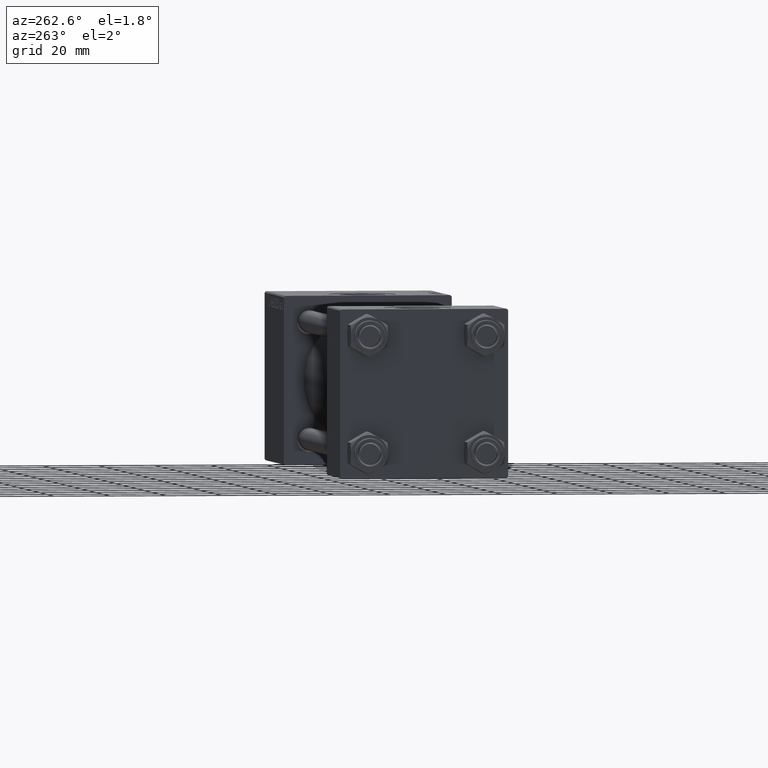
[diagram: clean part render]
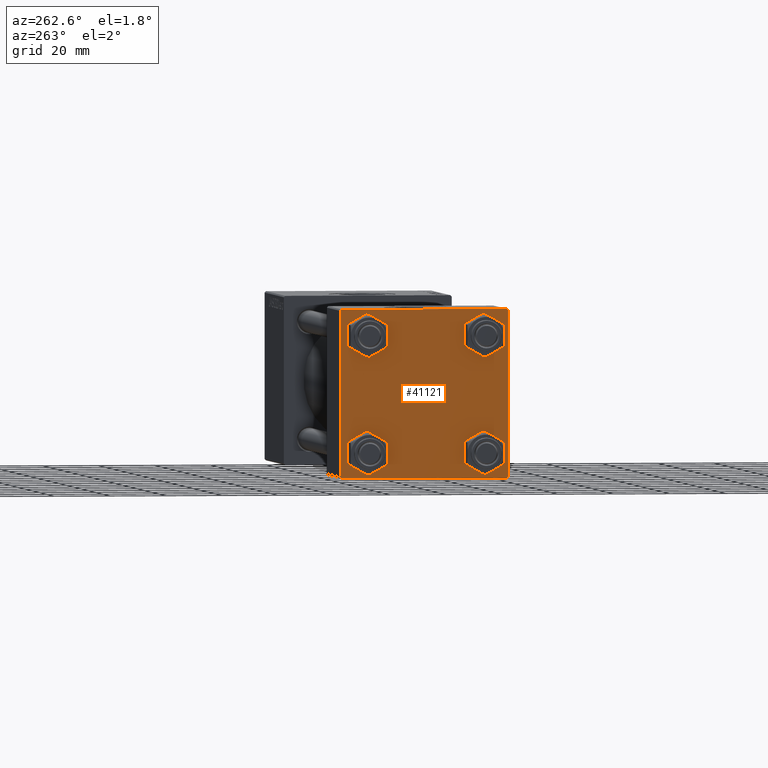
[diagram: same view with one face highlighted and labeled with its STEP entity id]
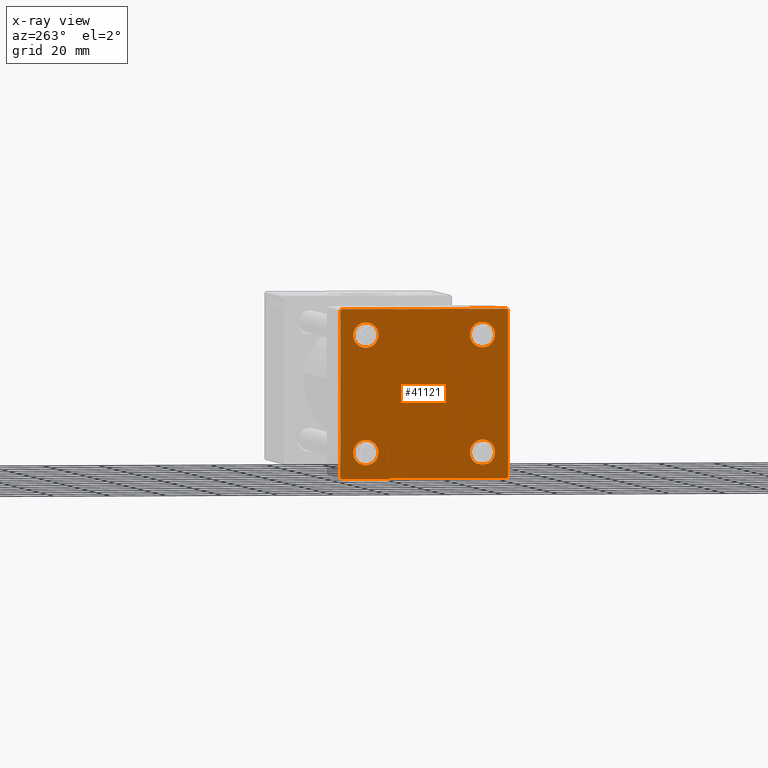
[diagram: x-ray of the same camera — body ghosted, the highlighted face saturated]
A machine part, auxiliary view. The second image highlights one B-rep face of the part: STEP entity #41121.
The next image is the same camera in x-ray: the body ghosted, the highlighted face saturated — about 0% of this face is hidden behind the body in this view.
In plain terms, the highlighted planar face has unit normal (-1, 0, 0).
Its self-contained STEP definition (entity closure, byte-faithful):
#269 = DIRECTION ( 'NONE',  ( -0.000000000000000000, -0.7071067811865574537, -0.7071067811865376918 ) ) ;
#702 = ORIENTED_EDGE ( 'NONE', *, *, #46769, .T. ) ;
#813 = CIRCLE ( 'NONE', #18283, 4.500000000000017764 ) ;
#1068 = EDGE_CURVE ( 'NONE', #48639, #22773, #35595, .T. ) ;
#1350 = EDGE_CURVE ( 'NONE', #25620, #45730, #23974, .T. ) ;
#1657 = FACE_BOUND ( 'NONE', #20911, .T. ) ;
#1671 = DIRECTION ( 'NONE',  ( 0.000000000000000000, 0.000000000000000000, 1.000000000000000000 ) ) ;
#1912 = DIRECTION ( 'NONE',  ( -0.000000000000000000, 0.000000000000000000, 1.000000000000000000 ) ) ;
#2900 = VERTEX_POINT ( 'NONE', #23548 ) ;
#3414 = LINE ( 'NONE', #14895, #24510 ) ;
#3769 = DIRECTION ( 'NONE',  ( 1.000000000000000000, -0.000000000000000000, 0.000000000000000000 ) ) ;
#3866 = EDGE_LOOP ( 'NONE', ( #44880, #20870, #28038, #38417, #13132, #15945, #17284, #9060 ) ) ;
#4473 = VECTOR ( 'NONE', #29014, 1000.000000000000000 ) ;
#4520 = CARTESIAN_POINT ( 'NONE',  ( 0.000000000000000000, -20.84999999999999076, -20.85000000000000497 ) ) ;
#5322 = CIRCLE ( 'NONE', #41920, 4.500000000000017764 ) ;
#5675 = CARTESIAN_POINT ( 'NONE',  ( 0.000000000000000000, 20.84999999999999787, -20.85000000000000142 ) ) ;
#5705 = ORIENTED_EDGE ( 'NONE', *, *, #33542, .T. ) ;
#5833 = FACE_BOUND ( 'NONE', #15432, .T. ) ;
#6588 = CARTESIAN_POINT ( 'NONE',  ( 0.000000000000000000, 0.000000000000000000, 0.000000000000000000 ) ) ;
#6897 = CARTESIAN_POINT ( 'NONE',  ( 0.000000000000000000, -20.84999999999999076, 16.34999999999998721 ) ) ;
#7049 = AXIS2_PLACEMENT_3D ( 'NONE', #35634, #15811, #31707 ) ;
#7334 = LINE ( 'NONE', #23487, #28668 ) ;
#7676 = DIRECTION ( 'NONE',  ( 0.000000000000000000, 0.000000000000000000, 1.000000000000000000 ) ) ;
#7995 = EDGE_CURVE ( 'NONE', #21670, #21316, #40806, .T. ) ;
#8403 = CIRCLE ( 'NONE', #23347, 4.500000000000017764 ) ;
#8688 = CARTESIAN_POINT ( 'NONE',  ( 0.000000000000000000, 20.84999999999999787, -25.35000000000001918 ) ) ;
#9060 = ORIENTED_EDGE ( 'NONE', *, *, #29308, .T. ) ;
#9423 = DIRECTION ( 'NONE',  ( 0.000000000000000000, 0.000000000000000000, 1.000000000000000000 ) ) ;
#9638 = ORIENTED_EDGE ( 'NONE', *, *, #35827, .T. ) ;
#10874 = CARTESIAN_POINT ( 'NONE',  ( 0.000000000000000000, 20.84999999999999787, -16.34999999999998366 ) ) ;
#11439 = CARTESIAN_POINT ( 'NONE',  ( 0.000000000000000000, 20.84999999999999787, 16.34999999999998366 ) ) ;
#11571 = LINE ( 'NONE', #19647, #4473 ) ;
#12497 = DIRECTION ( 'NONE',  ( 0.000000000000000000, 0.000000000000000000, 1.000000000000000000 ) ) ;
#13132 = ORIENTED_EDGE ( 'NONE', *, *, #38023, .F. ) ;
#13218 = CARTESIAN_POINT ( 'NONE',  ( 0.000000000000000000, -29.50000000000000000, -30.00000000000000711 ) ) ;
#13899 = FACE_BOUND ( 'NONE', #19580, .T. ) ;
#13980 = EDGE_CURVE ( 'NONE', #21316, #21670, #18416, .T. ) ;
#14086 = VECTOR ( 'NONE', #25070, 1000.000000000000114 ) ;
#14823 = CARTESIAN_POINT ( 'NONE',  ( 0.000000000000000000, -20.84999999999999076, 25.35000000000002274 ) ) ;
#14895 = CARTESIAN_POINT ( 'NONE',  ( -0.000000000000000000, -29.74999999999999645, 29.74999999999999645 ) ) ;
#14926 = CARTESIAN_POINT ( 'NONE',  ( 0.000000000000000000, -30.00000000000000000, 29.99999999999999289 ) ) ;
#15432 = EDGE_LOOP ( 'NONE', ( #9638, #702 ) ) ;
#15531 = VECTOR ( 'NONE', #49882, 1000.000000000000000 ) ;
#15811 = DIRECTION ( 'NONE',  ( 1.000000000000000000, -0.000000000000000000, 0.000000000000000000 ) ) ;
#15945 = ORIENTED_EDGE ( 'NONE', *, *, #21450, .T. ) ;
#15958 = VECTOR ( 'NONE', #18574, 1000.000000000000000 ) ;
#16407 = CARTESIAN_POINT ( 'NONE',  ( 0.000000000000000000, 20.84999999999999787, 20.85000000000000142 ) ) ;
#17003 = LINE ( 'NONE', #20399, #14086 ) ;
#17284 = ORIENTED_EDGE ( 'NONE', *, *, #25757, .F. ) ;
#18050 = LINE ( 'NONE', #33457, #15531 ) ;
#18128 = CARTESIAN_POINT ( 'NONE',  ( 0.000000000000000000, 29.49999999999997868, -30.00000000000000000 ) ) ;
#18283 = AXIS2_PLACEMENT_3D ( 'NONE', #38969, #3769, #7676 ) ;
#18408 = EDGE_CURVE ( 'NONE', #22773, #48639, #46913, .T. ) ;
#18416 = CIRCLE ( 'NONE', #20918, 4.500000000000017764 ) ;
#18574 = DIRECTION ( 'NONE',  ( 0.000000000000000000, 0.000000000000000000, -1.000000000000000000 ) ) ;
#19054 = EDGE_CURVE ( 'NONE', #50058, #25620, #11571, .T. ) ;
#19248 = ORIENTED_EDGE ( 'NONE', *, *, #13980, .T. ) ;
#19580 = EDGE_LOOP ( 'NONE', ( #41747, #5705 ) ) ;
#19647 = CARTESIAN_POINT ( 'NONE',  ( 0.000000000000000000, 29.99999999999999289, 30.00000000000000000 ) ) ;
#19749 = VERTEX_POINT ( 'NONE', #6897 ) ;
#20399 = CARTESIAN_POINT ( 'NONE',  ( 0.000000000000000000, 29.74999999999999645, 29.74999999999999645 ) ) ;
#20870 = ORIENTED_EDGE ( 'NONE', *, *, #1350, .T. ) ;
#20911 = EDGE_LOOP ( 'NONE', ( #29758, #40912 ) ) ;
#20918 = AXIS2_PLACEMENT_3D ( 'NONE', #24877, #36623, #1671 ) ;
#21316 = VERTEX_POINT ( 'NONE', #34714 ) ;
#21450 = EDGE_CURVE ( 'NONE', #41870, #27051, #3414, .T. ) ;
#21465 = PLANE ( 'NONE',  #32743 ) ;
#21670 = VERTEX_POINT ( 'NONE', #11439 ) ;
#21722 = DIRECTION ( 'NONE',  ( -1.000000000000000000, 0.000000000000000000, -0.000000000000000000 ) ) ;
#21903 = AXIS2_PLACEMENT_3D ( 'NONE', #5675, #25224, #48731 ) ;
#22773 = VERTEX_POINT ( 'NONE', #10874 ) ;
#23228 = DIRECTION ( 'NONE',  ( 0.000000000000000000, -0.7071067811865474617, 0.7071067811865474617 ) ) ;
#23347 = AXIS2_PLACEMENT_3D ( 'NONE', #25571, #42443, #9423 ) ;
#23420 = EDGE_CURVE ( 'NONE', #45730, #26931, #18050, .T. ) ;
#23487 = CARTESIAN_POINT ( 'NONE',  ( 0.000000000000000000, -29.75000000000001066, -29.75000000000001066 ) ) ;
#23548 = CARTESIAN_POINT ( 'NONE',  ( 0.000000000000000000, 29.49999999999999289, 30.00000000000000000 ) ) ;
#23761 = CARTESIAN_POINT ( 'NONE',  ( 0.000000000000000000, 29.99999999999999289, -29.50000000000000000 ) ) ;
#23974 = LINE ( 'NONE', #35997, #32230 ) ;
#24510 = VECTOR ( 'NONE', #51167, 1000.000000000000114 ) ;
#24877 = CARTESIAN_POINT ( 'NONE',  ( 0.000000000000000000, 20.84999999999999787, 20.85000000000000142 ) ) ;
#24970 = VERTEX_POINT ( 'NONE', #48546 ) ;
#25070 = DIRECTION ( 'NONE',  ( 0.000000000000000000, 0.7071067811865474617, -0.7071067811865474617 ) ) ;
#25224 = DIRECTION ( 'NONE',  ( 1.000000000000000000, -0.000000000000000000, 0.000000000000000000 ) ) ;
#25571 = CARTESIAN_POINT ( 'NONE',  ( 0.000000000000000000, -20.84999999999999076, -20.85000000000000497 ) ) ;
#25620 = VERTEX_POINT ( 'NONE', #23761 ) ;
#25757 = EDGE_CURVE ( 'NONE', #2900, #27051, #45904, .T. ) ;
#25758 = CARTESIAN_POINT ( 'NONE',  ( 0.000000000000000000, -30.00000000000000000, 29.49999999999999289 ) ) ;
#25809 = DIRECTION ( 'NONE',  ( 0.000000000000000000, -1.000000000000000000, -1.156482317317871725E-16 ) ) ;
#26170 = CIRCLE ( 'NONE', #7049, 4.500000000000017764 ) ;
#26931 = VERTEX_POINT ( 'NONE', #13218 ) ;
#27051 = VERTEX_POINT ( 'NONE', #45292 ) ;
#27242 = CARTESIAN_POINT ( 'NONE',  ( 0.000000000000000000, 20.84999999999999787, -20.85000000000000142 ) ) ;
#28038 = ORIENTED_EDGE ( 'NONE', *, *, #23420, .T. ) ;
#28668 = VECTOR ( 'NONE', #23228, 1000.000000000000114 ) ;
#28919 = AXIS2_PLACEMENT_3D ( 'NONE', #27242, #43161, #36628 ) ;
#29014 = DIRECTION ( 'NONE',  ( 0.000000000000000000, 0.000000000000000000, -1.000000000000000000 ) ) ;
#29308 = EDGE_CURVE ( 'NONE', #2900, #50058, #17003, .T. ) ;
#29500 = VERTEX_POINT ( 'NONE', #30454 ) ;
#29758 = ORIENTED_EDGE ( 'NONE', *, *, #18408, .T. ) ;
#30454 = CARTESIAN_POINT ( 'NONE',  ( 0.000000000000000000, -20.84999999999999076, -25.35000000000002274 ) ) ;
#30500 = VERTEX_POINT ( 'NONE', #14823 ) ;
#31707 = DIRECTION ( 'NONE',  ( 0.000000000000000000, 0.000000000000000000, 1.000000000000000000 ) ) ;
#32230 = VECTOR ( 'NONE', #269, 999.9999999999998863 ) ;
#32743 = AXIS2_PLACEMENT_3D ( 'NONE', #6588, #21722, #1912 ) ;
#33457 = CARTESIAN_POINT ( 'NONE',  ( 0.000000000000000000, 29.99999999999999289, -30.00000000000000000 ) ) ;
#33542 = EDGE_CURVE ( 'NONE', #19749, #30500, #813, .T. ) ;
#33968 = FACE_BOUND ( 'NONE', #50055, .T. ) ;
#34714 = CARTESIAN_POINT ( 'NONE',  ( 0.000000000000000000, 20.84999999999999787, 25.35000000000001918 ) ) ;
#35595 = CIRCLE ( 'NONE', #28919, 4.500000000000017764 ) ;
#35634 = CARTESIAN_POINT ( 'NONE',  ( 0.000000000000000000, -20.84999999999999076, 20.85000000000000497 ) ) ;
#35827 = EDGE_CURVE ( 'NONE', #48131, #29500, #8403, .T. ) ;
#35997 = CARTESIAN_POINT ( 'NONE',  ( 0.000000000000000000, 29.74999999999957723, -29.75000000000040501 ) ) ;
#36578 = DIRECTION ( 'NONE',  ( 1.000000000000000000, -0.000000000000000000, 0.000000000000000000 ) ) ;
#36623 = DIRECTION ( 'NONE',  ( 1.000000000000000000, -0.000000000000000000, 0.000000000000000000 ) ) ;
#36628 = DIRECTION ( 'NONE',  ( 0.000000000000000000, 0.000000000000000000, 1.000000000000000000 ) ) ;
#37232 = CARTESIAN_POINT ( 'NONE',  ( 0.000000000000000000, 29.99999999999999289, 29.50000000000000000 ) ) ;
#37342 = DIRECTION ( 'NONE',  ( 0.000000000000000000, 0.000000000000000000, 1.000000000000000000 ) ) ;
#37629 = FACE_OUTER_BOUND ( 'NONE', #3866, .T. ) ;
#38023 = EDGE_CURVE ( 'NONE', #41870, #24970, #46493, .T. ) ;
#38417 = ORIENTED_EDGE ( 'NONE', *, *, #48766, .T. ) ;
#38969 = CARTESIAN_POINT ( 'NONE',  ( 0.000000000000000000, -20.84999999999999076, 20.85000000000000497 ) ) ;
#40806 = CIRCLE ( 'NONE', #42466, 4.500000000000017764 ) ;
#40912 = ORIENTED_EDGE ( 'NONE', *, *, #1068, .T. ) ;
#41121 = ADVANCED_FACE ( 'NONE', ( #13899, #5833, #1657, #33968, #37629 ), #21465, .T. ) ;
#41747 = ORIENTED_EDGE ( 'NONE', *, *, #48502, .T. ) ;
#41870 = VERTEX_POINT ( 'NONE', #25758 ) ;
#41920 = AXIS2_PLACEMENT_3D ( 'NONE', #4520, #36578, #37342 ) ;
#42443 = DIRECTION ( 'NONE',  ( 1.000000000000000000, -0.000000000000000000, 0.000000000000000000 ) ) ;
#42466 = AXIS2_PLACEMENT_3D ( 'NONE', #16407, #48238, #12497 ) ;
#42772 = ORIENTED_EDGE ( 'NONE', *, *, #7995, .T. ) ;
#43132 = VECTOR ( 'NONE', #25809, 1000.000000000000000 ) ;
#43161 = DIRECTION ( 'NONE',  ( 1.000000000000000000, -0.000000000000000000, 0.000000000000000000 ) ) ;
#44880 = ORIENTED_EDGE ( 'NONE', *, *, #19054, .T. ) ;
#45292 = CARTESIAN_POINT ( 'NONE',  ( 0.000000000000000000, -29.49999999999998579, 29.99999999999999289 ) ) ;
#45384 = CARTESIAN_POINT ( 'NONE',  ( 0.000000000000000000, -20.84999999999999076, -16.34999999999998721 ) ) ;
#45644 = CARTESIAN_POINT ( 'NONE',  ( 0.000000000000000000, 29.99999999999999289, 30.00000000000000000 ) ) ;
#45730 = VERTEX_POINT ( 'NONE', #18128 ) ;
#45904 = LINE ( 'NONE', #45644, #43132 ) ;
#46493 = LINE ( 'NONE', #14926, #15958 ) ;
#46769 = EDGE_CURVE ( 'NONE', #29500, #48131, #5322, .T. ) ;
#46913 = CIRCLE ( 'NONE', #21903, 4.500000000000017764 ) ;
#48131 = VERTEX_POINT ( 'NONE', #45384 ) ;
#48238 = DIRECTION ( 'NONE',  ( 1.000000000000000000, -0.000000000000000000, 0.000000000000000000 ) ) ;
#48502 = EDGE_CURVE ( 'NONE', #30500, #19749, #26170, .T. ) ;
#48546 = CARTESIAN_POINT ( 'NONE',  ( 0.000000000000000000, -30.00000000000000000, -29.50000000000001776 ) ) ;
#48639 = VERTEX_POINT ( 'NONE', #8688 ) ;
#48731 = DIRECTION ( 'NONE',  ( 0.000000000000000000, 0.000000000000000000, 1.000000000000000000 ) ) ;
#48766 = EDGE_CURVE ( 'NONE', #26931, #24970, #7334, .T. ) ;
#49882 = DIRECTION ( 'NONE',  ( 0.000000000000000000, -1.000000000000000000, -1.156482317317871725E-16 ) ) ;
#50055 = EDGE_LOOP ( 'NONE', ( #19248, #42772 ) ) ;
#50058 = VERTEX_POINT ( 'NONE', #37232 ) ;
#51167 = DIRECTION ( 'NONE',  ( -0.000000000000000000, 0.7071067811865474617, 0.7071067811865474617 ) ) ;